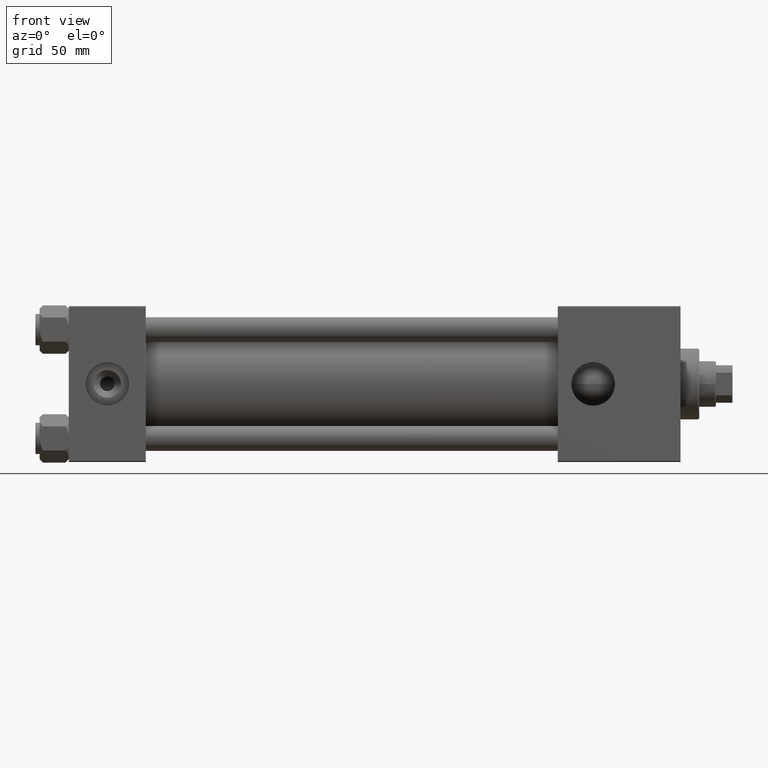
[diagram: clean part render]
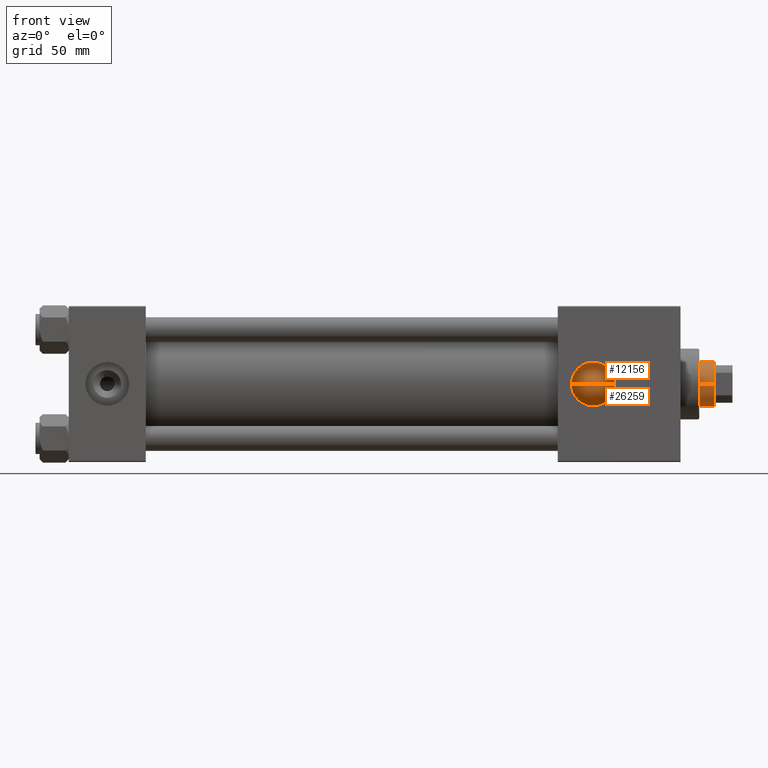
[diagram: same view with one multi-face feature highlighted, each face labeled with its STEP entity id]
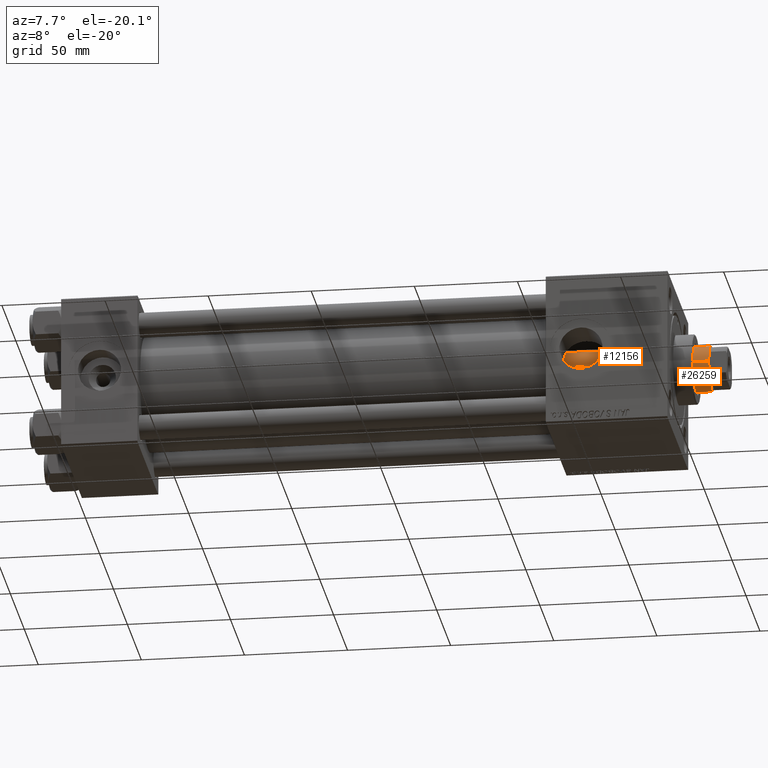
[diagram: same view with one multi-face feature highlighted, each face labeled with its STEP entity id]
A machine part, front view. The highlighted faces form ONE feature: a constant-radius fillet chain: 2 tangent blend faces with common blend radius 11 mm. The faces share edges in the B-rep.
A second angle (auxiliary view) of the same feature is appended — it is thin or edge-on in the first view.
Their STEP definitions:
[1] entity #26259 (Cylinder):
#1133 = DIRECTION ( 'NONE',  ( 1.000000000000000000, 0.000000000000000000, 0.000000000000000000 ) ) ;
#1864 = CARTESIAN_POINT ( 'NONE',  ( -11.00000000000000000, 0.000000000000000000, 38.00000000000000000 ) ) ;
#2061 = VECTOR ( 'NONE', #19219, 1000.000000000000000 ) ;
#8289 = VECTOR ( 'NONE', #36184, 1000.000000000000000 ) ;
#10173 = VERTEX_POINT ( 'NONE', #48513 ) ;
#10567 = CIRCLE ( 'NONE', #36549, 11.00000000000000000 ) ;
#10992 = DIRECTION ( 'NONE',  ( 0.000000000000000000, 0.000000000000000000, 1.000000000000000000 ) ) ;
#12288 = EDGE_CURVE ( 'NONE', #10173, #22351, #26807, .T. ) ;
#12512 = LINE ( 'NONE', #40258, #8289 ) ;
#12850 = EDGE_CURVE ( 'NONE', #28872, #34161, #10567, .T. ) ;
#13883 = FACE_OUTER_BOUND ( 'NONE', #43747, .T. ) ;
#16684 = DIRECTION ( 'NONE',  ( 0.000000000000000000, 0.000000000000000000, -1.000000000000000000 ) ) ;
#16972 = DIRECTION ( 'NONE',  ( -0.000000000000000000, -0.000000000000000000, -1.000000000000000000 ) ) ;
#18401 = DIRECTION ( 'NONE',  ( 1.000000000000000000, 0.000000000000000000, 0.000000000000000000 ) ) ;
#19219 = DIRECTION ( 'NONE',  ( -0.000000000000000000, -0.000000000000000000, -1.000000000000000000 ) ) ;
#22351 = VERTEX_POINT ( 'NONE', #44050 ) ;
#24653 = ORIENTED_EDGE ( 'NONE', *, *, #43101, .F. ) ;
#26077 = CARTESIAN_POINT ( 'NONE',  ( 11.00000000000000000, 1.347111479062088405E-15, 273.9999999999999432 ) ) ;
#26259 = ADVANCED_FACE ( 'NONE', ( #13883 ), #41152, .T. ) ;
#26807 = CIRCLE ( 'NONE', #43857, 11.00000000000000000 ) ;
#28872 = VERTEX_POINT ( 'NONE', #30895 ) ;
#29174 = CARTESIAN_POINT ( 'NONE',  ( 0.000000000000000000, 0.000000000000000000, 273.9999999999999432 ) ) ;
#30621 = CARTESIAN_POINT ( 'NONE',  ( 0.000000000000000000, 0.000000000000000000, 38.00000000000000000 ) ) ;
#30895 = CARTESIAN_POINT ( 'NONE',  ( 11.00000000000000000, 1.347111479062088405E-15, 38.00000000000000000 ) ) ;
#31063 = ORIENTED_EDGE ( 'NONE', *, *, #35160, .T. ) ;
#34161 = VERTEX_POINT ( 'NONE', #1864 ) ;
#35133 = ORIENTED_EDGE ( 'NONE', *, *, #12288, .T. ) ;
#35160 = EDGE_CURVE ( 'NONE', #22351, #28872, #42134, .T. ) ;
#36027 = CARTESIAN_POINT ( 'NONE',  ( 0.000000000000000000, 0.000000000000000000, 273.4999999999999432 ) ) ;
#36184 = DIRECTION ( 'NONE',  ( -0.000000000000000000, -0.000000000000000000, -1.000000000000000000 ) ) ;
#36549 = AXIS2_PLACEMENT_3D ( 'NONE', #30621, #10992, #18401 ) ;
#40258 = CARTESIAN_POINT ( 'NONE',  ( -11.00000000000000000, 0.000000000000000000, 273.9999999999999432 ) ) ;
#41152 = CYLINDRICAL_SURFACE ( 'NONE', #42605, 11.00000000000000000 ) ;
#42134 = LINE ( 'NONE', #26077, #2061 ) ;
#42577 = ORIENTED_EDGE ( 'NONE', *, *, #12850, .T. ) ;
#42605 = AXIS2_PLACEMENT_3D ( 'NONE', #29174, #16972, #44695 ) ;
#43101 = EDGE_CURVE ( 'NONE', #10173, #34161, #12512, .T. ) ;
#43747 = EDGE_LOOP ( 'NONE', ( #35133, #31063, #42577, #24653 ) ) ;
#43857 = AXIS2_PLACEMENT_3D ( 'NONE', #36027, #16684, #1133 ) ;
#44050 = CARTESIAN_POINT ( 'NONE',  ( 11.00000000000000000, 1.347111479062088405E-15, 273.4999999999999432 ) ) ;
#44695 = DIRECTION ( 'NONE',  ( -1.000000000000000000, 0.000000000000000000, 0.000000000000000000 ) ) ;
#48513 = CARTESIAN_POINT ( 'NONE',  ( -11.00000000000000000, 0.000000000000000000, 273.4999999999999432 ) ) ;
[2] entity #12156 (Cylinder):
#1574 = DIRECTION ( 'NONE',  ( 1.000000000000000000, 0.000000000000000000, 0.000000000000000000 ) ) ;
#1864 = CARTESIAN_POINT ( 'NONE',  ( -11.00000000000000000, 0.000000000000000000, 38.00000000000000000 ) ) ;
#2061 = VECTOR ( 'NONE', #19219, 1000.000000000000000 ) ;
#2487 = EDGE_LOOP ( 'NONE', ( #14903, #7844, #27847, #17176 ) ) ;
#2700 = CYLINDRICAL_SURFACE ( 'NONE', #21083, 11.00000000000000000 ) ;
#6007 = FACE_OUTER_BOUND ( 'NONE', #2487, .T. ) ;
#6271 = DIRECTION ( 'NONE',  ( -1.000000000000000000, 0.000000000000000000, 0.000000000000000000 ) ) ;
#7844 = ORIENTED_EDGE ( 'NONE', *, *, #18454, .T. ) ;
#8289 = VECTOR ( 'NONE', #36184, 1000.000000000000000 ) ;
#10173 = VERTEX_POINT ( 'NONE', #48513 ) ;
#10348 = DIRECTION ( 'NONE',  ( -0.000000000000000000, -0.000000000000000000, -1.000000000000000000 ) ) ;
#12156 = ADVANCED_FACE ( 'NONE', ( #6007 ), #2700, .T. ) ;
#12512 = LINE ( 'NONE', #40258, #8289 ) ;
#14903 = ORIENTED_EDGE ( 'NONE', *, *, #35160, .F. ) ;
#17176 = ORIENTED_EDGE ( 'NONE', *, *, #50054, .T. ) ;
#18454 = EDGE_CURVE ( 'NONE', #22351, #10173, #44863, .T. ) ;
#19219 = DIRECTION ( 'NONE',  ( -0.000000000000000000, -0.000000000000000000, -1.000000000000000000 ) ) ;
#20950 = CARTESIAN_POINT ( 'NONE',  ( 0.000000000000000000, 0.000000000000000000, 38.00000000000000000 ) ) ;
#21083 = AXIS2_PLACEMENT_3D ( 'NONE', #45238, #10348, #6271 ) ;
#21515 = CIRCLE ( 'NONE', #39408, 11.00000000000000000 ) ;
#22351 = VERTEX_POINT ( 'NONE', #44050 ) ;
#26077 = CARTESIAN_POINT ( 'NONE',  ( 11.00000000000000000, 1.347111479062088405E-15, 273.9999999999999432 ) ) ;
#27847 = ORIENTED_EDGE ( 'NONE', *, *, #43101, .T. ) ;
#28872 = VERTEX_POINT ( 'NONE', #30895 ) ;
#30895 = CARTESIAN_POINT ( 'NONE',  ( 11.00000000000000000, 1.347111479062088405E-15, 38.00000000000000000 ) ) ;
#32396 = DIRECTION ( 'NONE',  ( 0.000000000000000000, 0.000000000000000000, -1.000000000000000000 ) ) ;
#33139 = DIRECTION ( 'NONE',  ( 1.000000000000000000, 0.000000000000000000, 0.000000000000000000 ) ) ;
#34161 = VERTEX_POINT ( 'NONE', #1864 ) ;
#35160 = EDGE_CURVE ( 'NONE', #22351, #28872, #42134, .T. ) ;
#36184 = DIRECTION ( 'NONE',  ( -0.000000000000000000, -0.000000000000000000, -1.000000000000000000 ) ) ;
#36463 = DIRECTION ( 'NONE',  ( 0.000000000000000000, 0.000000000000000000, 1.000000000000000000 ) ) ;
#39408 = AXIS2_PLACEMENT_3D ( 'NONE', #20950, #36463, #1574 ) ;
#40015 = AXIS2_PLACEMENT_3D ( 'NONE', #44590, #32396, #33139 ) ;
#40258 = CARTESIAN_POINT ( 'NONE',  ( -11.00000000000000000, 0.000000000000000000, 273.9999999999999432 ) ) ;
#42134 = LINE ( 'NONE', #26077, #2061 ) ;
#43101 = EDGE_CURVE ( 'NONE', #10173, #34161, #12512, .T. ) ;
#44050 = CARTESIAN_POINT ( 'NONE',  ( 11.00000000000000000, 1.347111479062088405E-15, 273.4999999999999432 ) ) ;
#44590 = CARTESIAN_POINT ( 'NONE',  ( 0.000000000000000000, 0.000000000000000000, 273.4999999999999432 ) ) ;
#44863 = CIRCLE ( 'NONE', #40015, 11.00000000000000000 ) ;
#45238 = CARTESIAN_POINT ( 'NONE',  ( 0.000000000000000000, 0.000000000000000000, 273.9999999999999432 ) ) ;
#48513 = CARTESIAN_POINT ( 'NONE',  ( -11.00000000000000000, 0.000000000000000000, 273.4999999999999432 ) ) ;
#50054 = EDGE_CURVE ( 'NONE', #34161, #28872, #21515, .T. ) ;